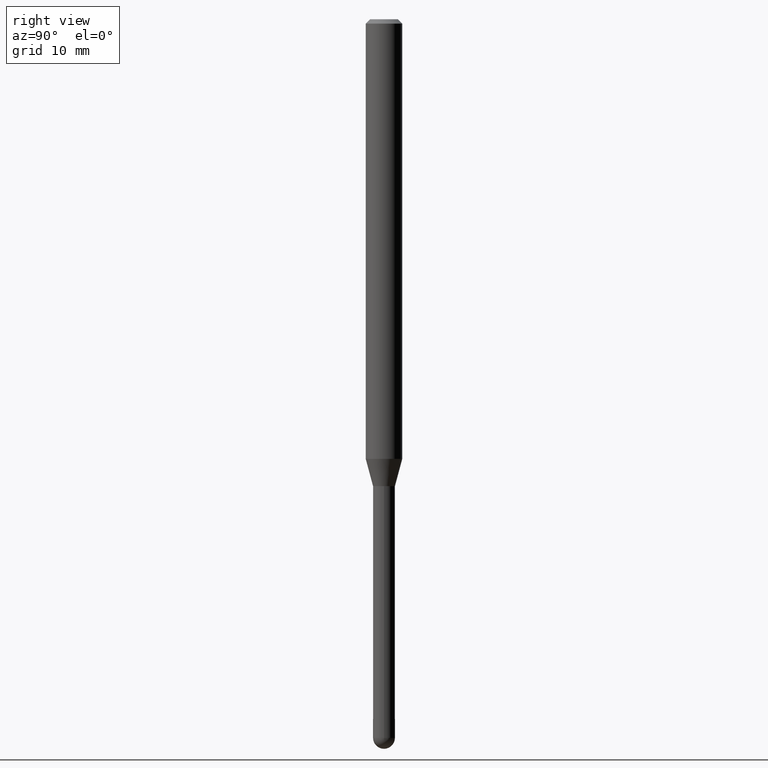
[diagram: clean part render]
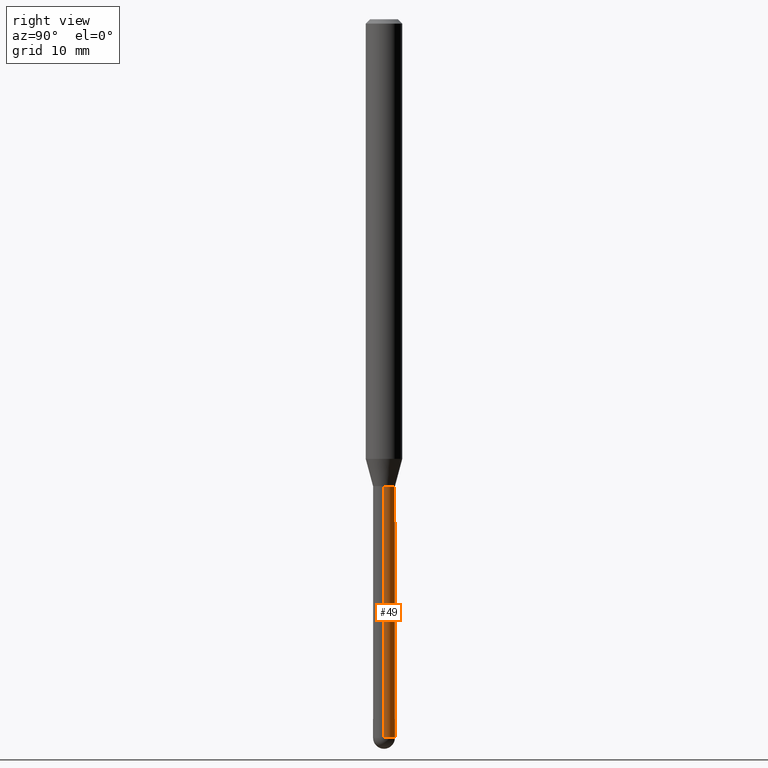
[diagram: same view with one face highlighted and labeled with its STEP entity id]
A machine part, right view. The second image highlights one B-rep face of the part: STEP entity #49.
In plain terms, the highlighted cylindrical surface (edge-blend (fillet) strip) has radius 0.9525 mm, axis along (-0, 0, 1).
Its self-contained STEP definition (entity closure, byte-faithful):
#11 = DIRECTION ( 'NONE',  ( -2.445468806185136877E-29, 3.491481338843145188E-15, 1.000000000000000000 ) ) ;
#38 = CARTESIAN_POINT ( 'NONE',  ( 0.03749999999999999861, -5.848231242562268092E-15, -1.600000000000000089 ) ) ;
#44 = VERTEX_POINT ( 'NONE', #38 ) ;
#46 = DIRECTION ( 'NONE',  ( -2.445468806185136597E-29, 3.491481338843145583E-15, 1.000000000000000000 ) ) ;
#49 = ADVANCED_FACE ( 'NONE', ( #362 ), #159, .T. ) ;
#55 = ORIENTED_EDGE ( 'NONE', *, *, #242, .F. ) ;
#56 = CARTESIAN_POINT ( 'NONE',  ( 0.03749999999999999861, -2.618611004132350016E-16, 1.828566290923475922E-30 ) ) ;
#62 = AXIS2_PLACEMENT_3D ( 'NONE', #402, #46, #204 ) ;
#74 = ORIENTED_EDGE ( 'NONE', *, *, #321, .F. ) ;
#80 = CIRCLE ( 'NONE', #381, 0.03749999999999999861 ) ;
#92 = CARTESIAN_POINT ( 'NONE',  ( -0.03749999999999999861, 2.664535259100375598E-16, -1.844600658845589808E-30 ) ) ;
#148 = DIRECTION ( 'NONE',  ( -2.445468806185136597E-29, 3.491481338843145583E-15, 1.000000000000000000 ) ) ;
#154 = VERTEX_POINT ( 'NONE', #323 ) ;
#159 = CYLINDRICAL_SURFACE ( 'NONE', #351, 0.03749999999999999861 ) ;
#161 = VECTOR ( 'NONE', #11, 39.37007874015748143 ) ;
#173 = CARTESIAN_POINT ( 'NONE',  ( 6.021966935230899318E-29, -8.597772796901246653E-15, -2.462500000000000355 ) ) ;
#192 = VERTEX_POINT ( 'NONE', #282 ) ;
#202 = DIRECTION ( 'NONE',  ( -2.445468806185136877E-29, 3.491481338843145188E-15, 1.000000000000000000 ) ) ;
#204 = DIRECTION ( 'NONE',  ( 1.000000000000000000, -6.982962677686268288E-15, 0.000000000000000000 ) ) ;
#231 = AXIS2_PLACEMENT_3D ( 'NONE', #173, #329, #241 ) ;
#241 = DIRECTION ( 'NONE',  ( 1.000000000000000000, -6.982962677686242256E-15, 0.000000000000000000 ) ) ;
#242 = EDGE_CURVE ( 'NONE', #44, #404, #284, .T. ) ;
#257 = ORIENTED_EDGE ( 'NONE', *, *, #338, .T. ) ;
#282 = CARTESIAN_POINT ( 'NONE',  ( 0.03749999999999999861, -7.353932569938374479E-15, -2.462500000000000355 ) ) ;
#284 = CIRCLE ( 'NONE', #62, 0.03749999999999999861 ) ;
#291 = EDGE_CURVE ( 'NONE', #192, #154, #80, .T. ) ;
#309 = VECTOR ( 'NONE', #202, 39.37007874015748143 ) ;
#311 = ORIENTED_EDGE ( 'NONE', *, *, #437, .T. ) ;
#321 = EDGE_CURVE ( 'NONE', #192, #44, #410, .T. ) ;
#323 = CARTESIAN_POINT ( 'NONE',  ( 2.618611004132948565E-16, 0.03749999999999135275, -2.462500000000000355 ) ) ;
#329 = DIRECTION ( 'NONE',  ( -2.445468806185136597E-29, 3.491481338843145583E-15, 1.000000000000000000 ) ) ;
#338 = EDGE_CURVE ( 'NONE', #154, #358, #448, .T. ) ;
#351 = AXIS2_PLACEMENT_3D ( 'NONE', #472, #396, #363 ) ;
#357 = CARTESIAN_POINT ( 'NONE',  ( -0.03749999999999999861, -6.825617943615102854E-15, -1.600000000000000089 ) ) ;
#358 = VERTEX_POINT ( 'NONE', #509 ) ;
#362 = FACE_OUTER_BOUND ( 'NONE', #401, .T. ) ;
#363 = DIRECTION ( 'NONE',  ( 1.000000000000000000, -6.982962677686266711E-15, 4.876176775795935793E-29 ) ) ;
#379 = CARTESIAN_POINT ( 'NONE',  ( 6.021966935230899318E-29, -8.597772796901246653E-15, -2.462500000000000355 ) ) ;
#381 = AXIS2_PLACEMENT_3D ( 'NONE', #379, #148, #484 ) ;
#396 = DIRECTION ( 'NONE',  ( -2.445468806185136597E-29, 3.491481338843145583E-15, 1.000000000000000000 ) ) ;
#401 = EDGE_LOOP ( 'NONE', ( #257, #311, #55, #74, #442 ) ) ;
#402 = CARTESIAN_POINT ( 'NONE',  ( 3.912750089896218667E-29, -5.586370142149033090E-15, -1.600000000000000089 ) ) ;
#404 = VERTEX_POINT ( 'NONE', #357 ) ;
#410 = LINE ( 'NONE', #56, #161 ) ;
#437 = EDGE_CURVE ( 'NONE', #358, #404, #446, .T. ) ;
#442 = ORIENTED_EDGE ( 'NONE', *, *, #291, .T. ) ;
#446 = LINE ( 'NONE', #92, #309 ) ;
#448 = CIRCLE ( 'NONE', #231, 0.03749999999999999861 ) ;
#472 = CARTESIAN_POINT ( 'NONE',  ( 0.000000000000000000, 0.000000000000000000, 0.000000000000000000 ) ) ;
#484 = DIRECTION ( 'NONE',  ( 1.000000000000000000, -6.982962677686242256E-15, 0.000000000000000000 ) ) ;
#509 = CARTESIAN_POINT ( 'NONE',  ( -0.03749999999999999861, -6.825617943615102854E-15, -2.462500000000000355 ) ) ;